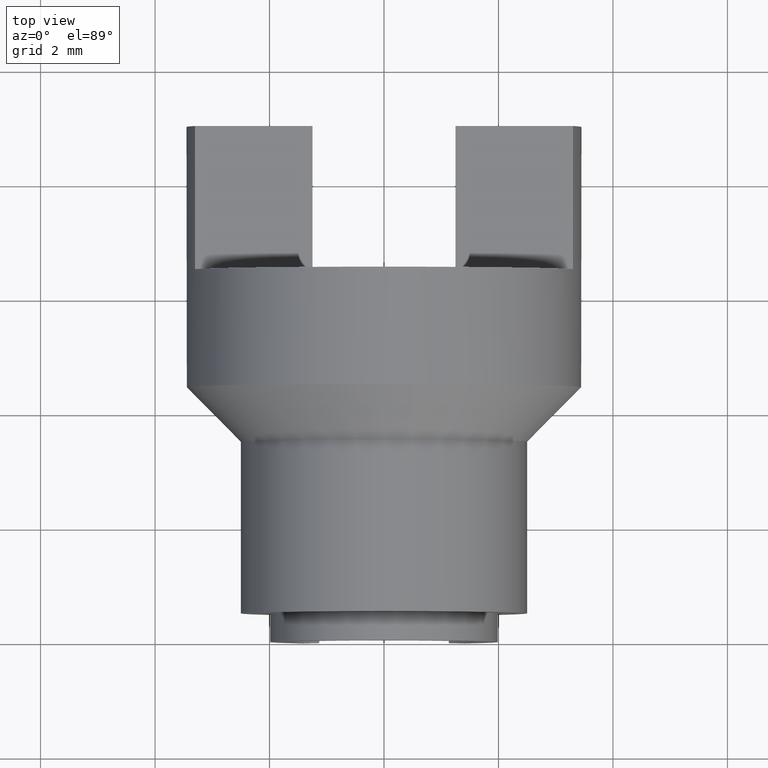
[diagram: clean part render]
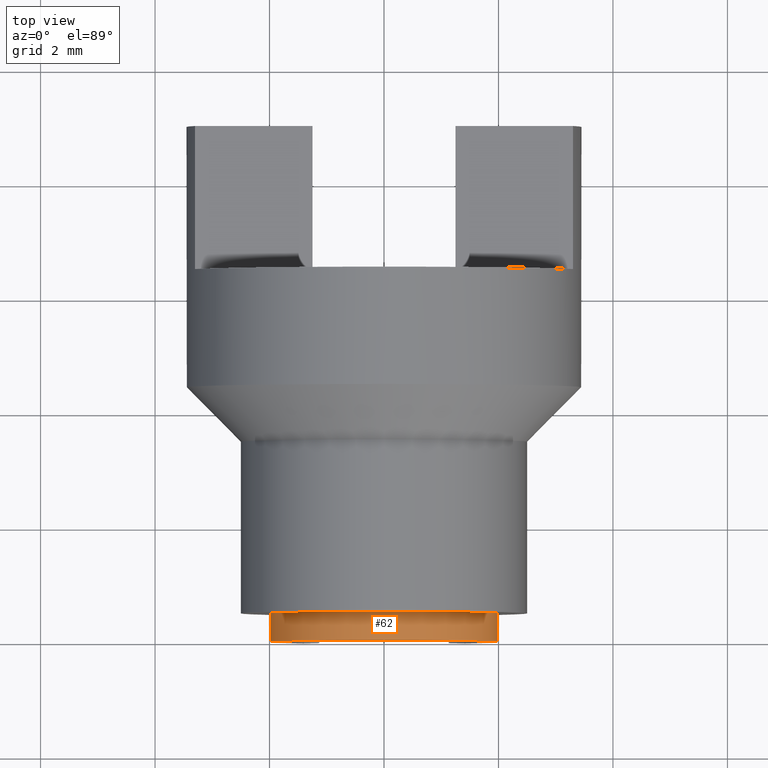
[diagram: same view with one face highlighted and labeled with its STEP entity id]
A machine part, top view. The second image highlights one B-rep face of the part: STEP entity #62.
In plain terms, the highlighted cylindrical surface (partial cylindrical patch) has radius 2 mm, axis along (-0, 1, 0).
Its self-contained STEP definition (entity closure, byte-faithful):
#62 = ADVANCED_FACE( '', ( #125 ), #126, .T. );
#125 = FACE_OUTER_BOUND( '', #186, .T. );
#126 = CYLINDRICAL_SURFACE( '', #187, 2.00000000000000 );
#186 = EDGE_LOOP( '', ( #303, #304, #305, #306 ) );
#187 = AXIS2_PLACEMENT_3D( '', #307, #308, #309 );
#303 = ORIENTED_EDGE( '', *, *, #426, .F. );
#304 = ORIENTED_EDGE( '', *, *, #427, .F. );
#305 = ORIENTED_EDGE( '', *, *, #416, .F. );
#306 = ORIENTED_EDGE( '', *, *, #428, .T. );
#307 = CARTESIAN_POINT( '', ( 0.000000000000000, 0.000000000000000, 0.000000000000000 ) );
#308 = DIRECTION( '', ( -0.000000000000000, 1.00000000000000, 0.000000000000000 ) );
#309 = DIRECTION( '', ( 0.000000000000000, 0.000000000000000, -1.00000000000000 ) );
#416 = EDGE_CURVE( '', #506, #508, #509, .T. );
#426 = EDGE_CURVE( '', #520, #521, #522, .F. );
#427 = EDGE_CURVE( '', #508, #520, #523, .T. );
#428 = EDGE_CURVE( '', #506, #521, #524, .T. );
#506 = VERTEX_POINT( '', #625 );
#508 = VERTEX_POINT( '', #628 );
#509 = LINE( '', #629, #630 );
#520 = VERTEX_POINT( '', #644 );
#521 = VERTEX_POINT( '', #645 );
#522 = LINE( '', #646, #647 );
#523 = CIRCLE( '', #648, 2.00000000000000 );
#524 = CIRCLE( '', #649, 2.00000000000000 );
#625 = CARTESIAN_POINT( '', ( 1.41421356237259, 0.500000000000000, -1.41421356237360 ) );
#628 = CARTESIAN_POINT( '', ( 1.41421356237260, 0.000000000000000, -1.41421356237360 ) );
#629 = CARTESIAN_POINT( '', ( 1.41421356237259, 0.000000000000000, -1.41421356237360 ) );
#630 = VECTOR( '', #721, 1000.00000000000 );
#644 = CARTESIAN_POINT( '', ( -1.41421356237309, 0.000000000000000, -1.41421356237310 ) );
#645 = CARTESIAN_POINT( '', ( -1.41421356237309, 0.500000000000000, -1.41421356237310 ) );
#646 = CARTESIAN_POINT( '', ( -1.41421356237309, 0.000000000000000, -1.41421356237310 ) );
#647 = VECTOR( '', #731, 1000.00000000000 );
#648 = AXIS2_PLACEMENT_3D( '', #732, #733, #734 );
#649 = AXIS2_PLACEMENT_3D( '', #735, #736, #737 );
#721 = DIRECTION( '', ( -0.000000000000000, -1.00000000000000, -0.000000000000000 ) );
#731 = DIRECTION( '', ( -0.000000000000000, -1.00000000000000, -0.000000000000000 ) );
#732 = CARTESIAN_POINT( '', ( 0.000000000000000, 0.000000000000000, 0.000000000000000 ) );
#733 = DIRECTION( '', ( 0.000000000000000, -1.00000000000000, -0.000000000000000 ) );
#734 = DIRECTION( '', ( 0.000000000000000, 0.000000000000000, -1.00000000000000 ) );
#735 = CARTESIAN_POINT( '', ( 0.000000000000000, 0.500000000000000, 0.000000000000000 ) );
#736 = DIRECTION( '', ( 0.000000000000000, -1.00000000000000, -0.000000000000000 ) );
#737 = DIRECTION( '', ( 0.000000000000000, 0.000000000000000, -1.00000000000000 ) );